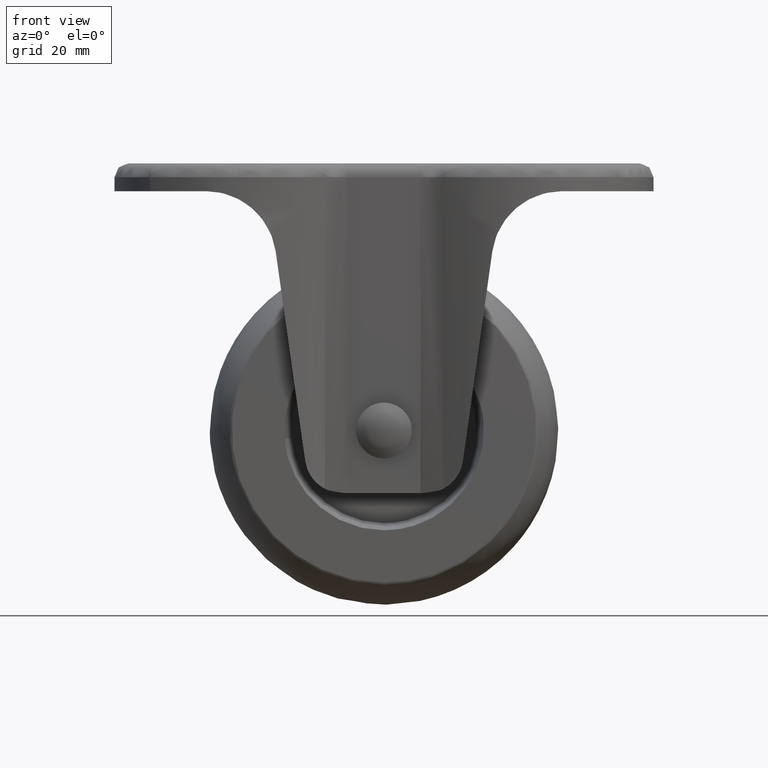
[diagram: clean part render]
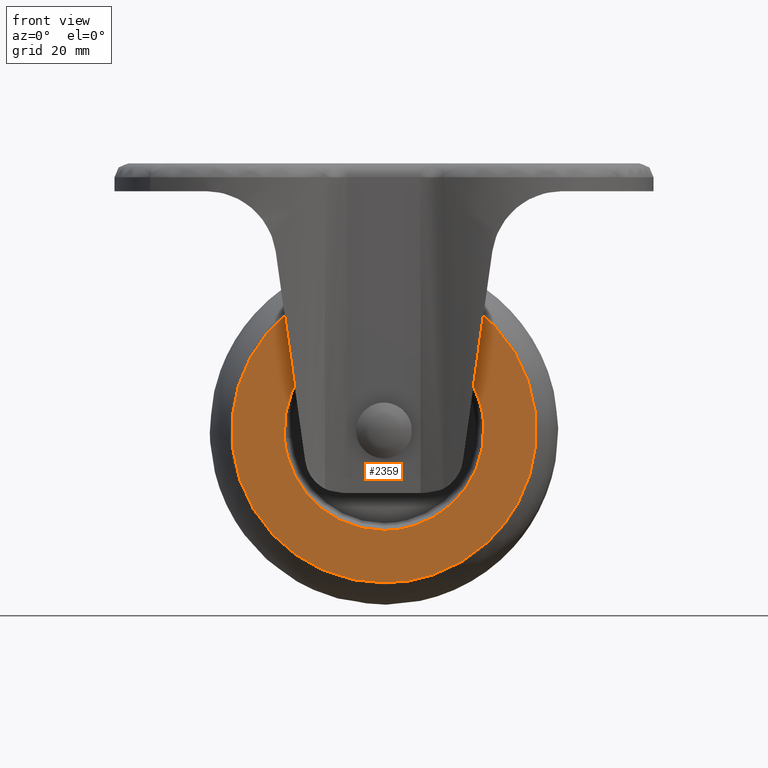
[diagram: same view with one face highlighted and labeled with its STEP entity id]
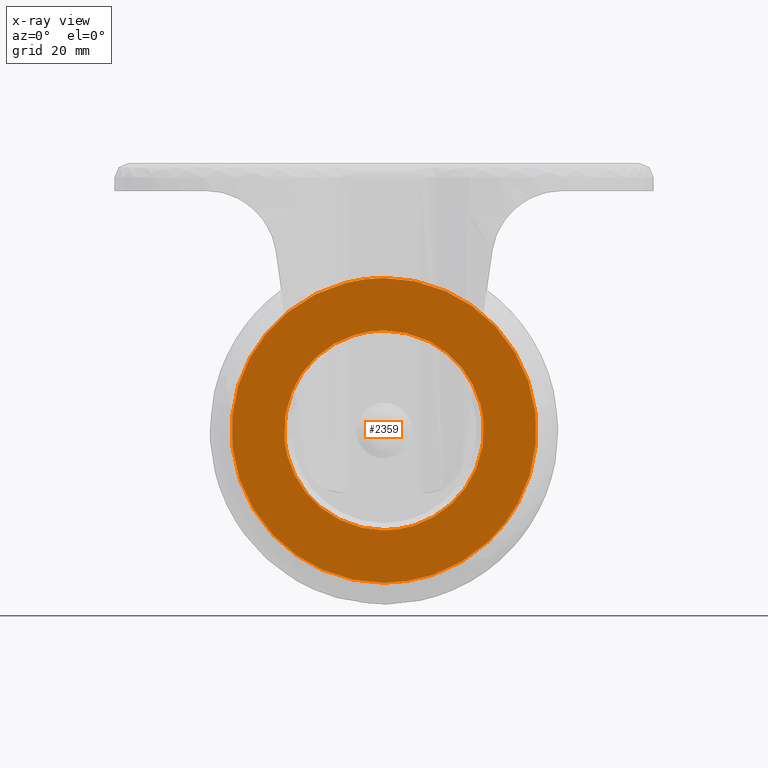
[diagram: x-ray of the same camera — body ghosted, the highlighted face saturated]
A machine part, front view. The second image highlights one B-rep face of the part: STEP entity #2359.
The next image is the same camera in x-ray: the body ghosted, the highlighted face saturated — about 0% of this face is hidden behind the body in this view.
In plain terms, the highlighted face is a freeform B-spline surface patch.
Its self-contained STEP definition (entity closure, byte-faithful):
#680=CARTESIAN_POINT('',(0.0,-11.500000000000000,-36.000000000000007));
#681=VERTEX_POINT('',#680);
#682=CARTESIAN_POINT('',(21.433722675256480,-11.500000000016881,-55.813129441735342));
#683=VERTEX_POINT('',#682);
#684=CARTESIAN_POINT('',(0.0,-11.500000000000000,-36.000000000000007));
#685=CARTESIAN_POINT('',(19.874395570436185,-11.500000000000000,-36.000000000000007));
#686=CARTESIAN_POINT('',(21.433722675256487,-11.500000000016886,-55.813129441735342));
#694=(BOUNDED_CURVE()B_SPLINE_CURVE(2,(#684,#685,#686),.UNSPECIFIED.,.F.,.U.)B_SPLINE_CURVE_WITH_KNOTS((3,3),(0.0,0.236331300630916),.UNSPECIFIED.)CURVE()GEOMETRIC_REPRESENTATION_ITEM()RATIONAL_B_SPLINE_CURVE((1.0,0.723120658607365,0.969723356167953))REPRESENTATION_ITEM(''));
#695=EDGE_CURVE('',#681,#683,#694,.T.);
#697=CARTESIAN_POINT('',(-21.433722675256480,-11.500000000016881,-59.186870558264658));
#698=VERTEX_POINT('',#697);
#699=CARTESIAN_POINT('',(-21.433722675256483,-11.500000000016890,-59.186870558264658));
#700=CARTESIAN_POINT('',(-21.499999999999996,-11.500000000000007,-58.344737300781148));
#701=CARTESIAN_POINT('',(-21.500000000000000,-11.500000000000000,-57.500000000000000));
#702=CARTESIAN_POINT('',(-21.499999999999996,-11.500000000000000,-36.000000000000014));
#703=CARTESIAN_POINT('',(0.0,-11.500000000000000,-36.000000000000007));
#711=(BOUNDED_CURVE()B_SPLINE_CURVE(2,(#699,#700,#701,#702,#703),.UNSPECIFIED.,.F.,.U.)B_SPLINE_CURVE_WITH_KNOTS((3,2,3),(0.736331300630916,0.750000000000000,1.0),.UNSPECIFIED.)CURVE()GEOMETRIC_REPRESENTATION_ITEM()RATIONAL_B_SPLINE_CURVE((0.969723356167952,0.983986122579182,1.0,0.707106781186548,1.0))REPRESENTATION_ITEM(''));
#712=EDGE_CURVE('',#698,#681,#711,.T.);
#779=CARTESIAN_POINT('',(0.0,-11.500000000000000,-79.0));
#780=VERTEX_POINT('',#779);
#781=CARTESIAN_POINT('',(21.433722675256483,-11.500000000016890,-55.813129441735342));
#782=CARTESIAN_POINT('',(21.500000000000007,-11.499999999999996,-56.655262699218845));
#783=CARTESIAN_POINT('',(21.500000000000000,-11.500000000000000,-57.500000000000000));
#784=CARTESIAN_POINT('',(21.499999999999996,-11.500000000000000,-79.0));
#785=CARTESIAN_POINT('',(0.0,-11.500000000000000,-79.0));
#793=(BOUNDED_CURVE()B_SPLINE_CURVE(2,(#781,#782,#783,#784,#785),.UNSPECIFIED.,.F.,.U.)B_SPLINE_CURVE_WITH_KNOTS((3,2,3),(0.236331300630916,0.250000000000000,0.500000000000000),.UNSPECIFIED.)CURVE()GEOMETRIC_REPRESENTATION_ITEM()RATIONAL_B_SPLINE_CURVE((0.969723356167952,0.983986122579182,1.0,0.707106781186548,1.0))REPRESENTATION_ITEM(''));
#794=EDGE_CURVE('',#683,#780,#793,.T.);
#828=CARTESIAN_POINT('',(0.0,-11.500000000000000,-79.0));
#829=CARTESIAN_POINT('',(-19.874395570436260,-11.499999999999998,-79.0));
#830=CARTESIAN_POINT('',(-21.433722675256487,-11.500000000016884,-59.186870558264658));
#838=(BOUNDED_CURVE()B_SPLINE_CURVE(2,(#828,#829,#830),.UNSPECIFIED.,.F.,.U.)B_SPLINE_CURVE_WITH_KNOTS((3,3),(0.500000000000000,0.736331300630916),.UNSPECIFIED.)CURVE()GEOMETRIC_REPRESENTATION_ITEM()RATIONAL_B_SPLINE_CURVE((1.0,0.723120658607365,0.969723356167954))REPRESENTATION_ITEM(''));
#839=EDGE_CURVE('',#780,#698,#838,.T.);
#2012=CARTESIAN_POINT('',(22.452032072338820,-11.499999999999980,-81.408985752486217));
#2013=VERTEX_POINT('',#2012);
#2027=CARTESIAN_POINT('',(0.0,-11.500000000000000,-90.298373999999995));
#2028=VERTEX_POINT('',#2027);
#2029=CARTESIAN_POINT('',(22.452032072338827,-11.499999999999979,-81.408985752486217));
#2030=CARTESIAN_POINT('',(12.985794909668810,-11.499999999999998,-90.298373999999995));
#2031=CARTESIAN_POINT('',(0.0,-11.500000000000000,-90.298373999999995));
#2039=(BOUNDED_CURVE()B_SPLINE_CURVE(2,(#2029,#2030,#2031),.UNSPECIFIED.,.F.,.U.)B_SPLINE_CURVE_WITH_KNOTS((3,3),(0.379740687156782,0.500000000000000),.UNSPECIFIED.)CURVE()GEOMETRIC_REPRESENTATION_ITEM()RATIONAL_B_SPLINE_CURVE((0.853764031098870,0.859107451076224,1.0))REPRESENTATION_ITEM(''));
#2040=EDGE_CURVE('',#2013,#2028,#2039,.T.);
#2042=CARTESIAN_POINT('',(0.0,-11.500000000000000,-24.701626000000012));
#2043=VERTEX_POINT('',#2042);
#2044=CARTESIAN_POINT('',(0.0,-11.500000000000000,-90.298373999999995));
#2045=CARTESIAN_POINT('',(-32.798374000000003,-11.500000000000000,-90.298373999999995));
#2046=CARTESIAN_POINT('',(-32.798374000000003,-11.500000000000000,-57.500000000000000));
#2047=CARTESIAN_POINT('',(-32.798374000000003,-11.500000000000000,-24.701626000000008));
#2048=CARTESIAN_POINT('',(0.0,-11.500000000000000,-24.701626000000012));
#2056=(BOUNDED_CURVE()B_SPLINE_CURVE(2,(#2044,#2045,#2046,#2047,#2048),.UNSPECIFIED.,.F.,.U.)B_SPLINE_CURVE_WITH_KNOTS((3,2,3),(0.500000000000000,0.750000000000000,1.0),.UNSPECIFIED.)CURVE()GEOMETRIC_REPRESENTATION_ITEM()RATIONAL_B_SPLINE_CURVE((1.0,0.707106781186548,1.0,0.707106781186548,1.0))REPRESENTATION_ITEM(''));
#2057=EDGE_CURVE('',#2028,#2043,#2056,.T.);
#2059=CARTESIAN_POINT('',(23.908985752486242,-11.499999999999980,-35.047967927661183));
#2060=VERTEX_POINT('',#2059);
#2061=CARTESIAN_POINT('',(0.0,-11.500000000000000,-24.701626000000012));
#2062=CARTESIAN_POINT('',(14.193123832636207,-11.499999999999998,-24.701626000000008));
#2063=CARTESIAN_POINT('',(23.908985752486242,-11.499999999999979,-35.047967927661176));
#2071=(BOUNDED_CURVE()B_SPLINE_CURVE(2,(#2061,#2062,#2063),.UNSPECIFIED.,.F.,.U.)B_SPLINE_CURVE_WITH_KNOTS((3,3),(0.0,0.129740687156782),.UNSPECIFIED.)CURVE()GEOMETRIC_REPRESENTATION_ITEM()RATIONAL_B_SPLINE_CURVE((1.0,0.847999330110324,0.853764031098870))REPRESENTATION_ITEM(''));
#2072=EDGE_CURVE('',#2043,#2060,#2071,.T.);
#2113=CARTESIAN_POINT('',(23.908985752486242,-11.499999999999979,-35.047967927661176));
#2114=CARTESIAN_POINT('',(32.798373999999995,-11.499999999999998,-44.514205090331188));
#2115=CARTESIAN_POINT('',(32.798374000000003,-11.500000000000000,-57.500000000000000));
#2116=CARTESIAN_POINT('',(32.798373999999995,-11.500000000000002,-71.693123832636232));
#2117=CARTESIAN_POINT('',(22.452032072338827,-11.499999999999979,-81.408985752486217));
#2125=(BOUNDED_CURVE()B_SPLINE_CURVE(2,(#2113,#2114,#2115,#2116,#2117),.UNSPECIFIED.,.F.,.U.)B_SPLINE_CURVE_WITH_KNOTS((3,2,3),(0.129740687156782,0.250000000000000,0.379740687156782),.UNSPECIFIED.)CURVE()GEOMETRIC_REPRESENTATION_ITEM()RATIONAL_B_SPLINE_CURVE((0.853764031098870,0.859107451076224,1.0,0.847999330110324,0.853764031098870))REPRESENTATION_ITEM(''));
#2126=EDGE_CURVE('',#2060,#2013,#2125,.T.);
#2342=CARTESIAN_POINT('',(-36.074572869719937,-11.500000000000000,-93.574927740808747));
#2343=CARTESIAN_POINT('',(-36.074572869719937,-11.500000000000000,-21.425066980865591));
#2344=CARTESIAN_POINT('',(36.067383223662453,-11.500000000000000,-93.574927740808747));
#2345=CARTESIAN_POINT('',(36.067383223662453,-11.500000000000000,-21.425066980865591));
#2346=B_SPLINE_SURFACE_WITH_KNOTS('',1,1,((#2342,#2344),(#2343,#2345)),.UNSPECIFIED.,.F.,.F.,.U.,(2,2),(2,2),(0.0,72.149860759943152),(0.0,72.141956093382390),.UNSPECIFIED.);
#2347=ORIENTED_EDGE('',*,*,#2057,.F.);
#2348=ORIENTED_EDGE('',*,*,#2040,.F.);
#2349=ORIENTED_EDGE('',*,*,#2126,.F.);
#2350=ORIENTED_EDGE('',*,*,#2072,.F.);
#2351=EDGE_LOOP('',(#2347,#2348,#2349,#2350));
#2352=FACE_OUTER_BOUND('',#2351,.T.);
#2353=ORIENTED_EDGE('',*,*,#839,.T.);
#2354=ORIENTED_EDGE('',*,*,#712,.T.);
#2355=ORIENTED_EDGE('',*,*,#695,.T.);
#2356=ORIENTED_EDGE('',*,*,#794,.T.);
#2357=EDGE_LOOP('',(#2353,#2354,#2355,#2356));
#2358=FACE_BOUND('',#2357,.T.);
#2359=ADVANCED_FACE('',(#2352,#2358),#2346,.F.);